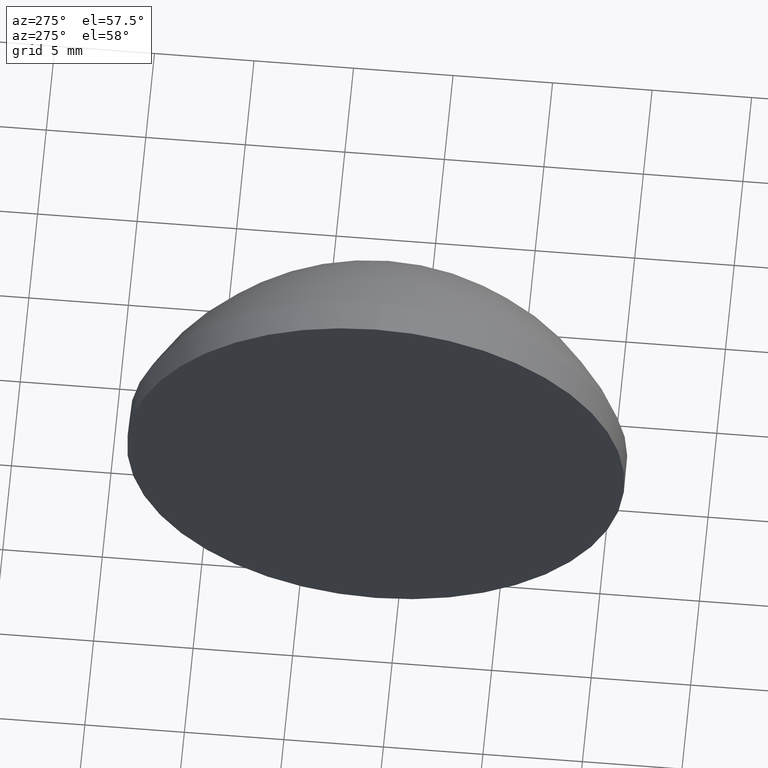
[diagram: clean part render]
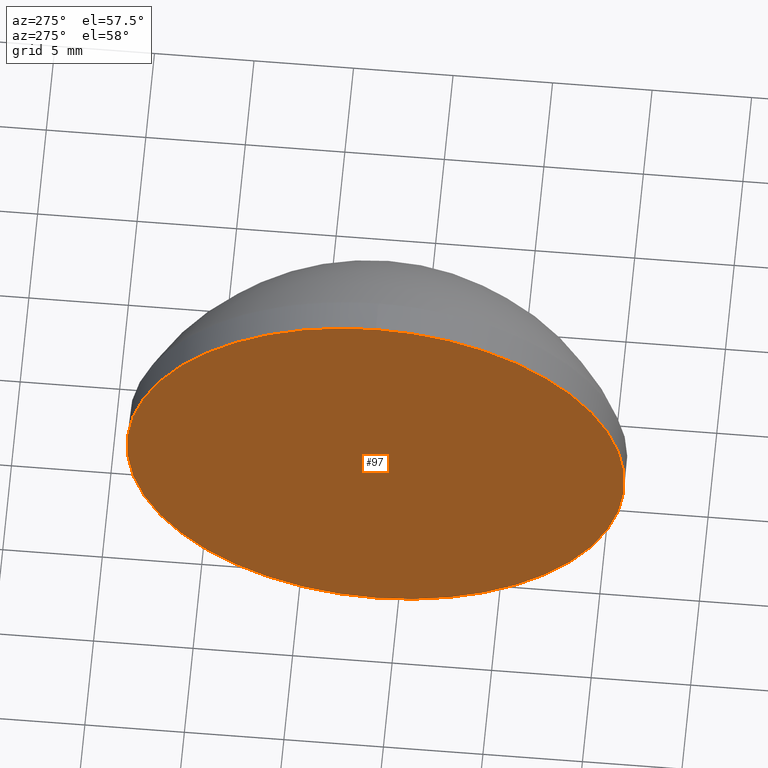
[diagram: same view with one face highlighted and labeled with its STEP entity id]
A machine part, auxiliary view. The second image highlights one B-rep face of the part: STEP entity #97.
In plain terms, the highlighted planar face has unit normal (1, 0, 0).
Its self-contained STEP definition (entity closure, byte-faithful):
#10 = VERTEX_POINT ( 'NONE', #122 ) ;
#14 = EDGE_CURVE ( 'NONE', #10, #175, #37, .T. ) ;
#17 = DIRECTION ( 'NONE',  ( 0.0000000000000000000, 0.0000000000000000000, 1.000000000000000000 ) ) ;
#18 = DIRECTION ( 'NONE',  ( 1.000000000000000000, 0.0000000000000000000, 0.0000000000000000000 ) ) ;
#33 = EDGE_LOOP ( 'NONE', ( #81, #89 ) ) ;
#34 = CARTESIAN_POINT ( 'NONE',  ( 443.4287641155197000, -33.87662092568371000, 0.0000000000000000000 ) ) ;
#37 = CIRCLE ( 'NONE', #47, 12.50000000000000400 ) ;
#46 = DIRECTION ( 'NONE',  ( -1.000000000000000000, -0.0000000000000000000, -0.0000000000000000000 ) ) ;
#47 = AXIS2_PLACEMENT_3D ( 'NONE', #133, #46, #147 ) ;
#70 = CIRCLE ( 'NONE', #178, 12.50000000000000400 ) ;
#80 = DIRECTION ( 'NONE',  ( 0.0000000000000000000, 0.0000000000000000000, -1.000000000000000000 ) ) ;
#81 = ORIENTED_EDGE ( 'NONE', *, *, #14, .T. ) ;
#87 = CARTESIAN_POINT ( 'NONE',  ( 443.4287641155197000, -33.87662092568371000, -12.50000000000000400 ) ) ;
#89 = ORIENTED_EDGE ( 'NONE', *, *, #127, .T. ) ;
#93 = DIRECTION ( 'NONE',  ( -1.000000000000000000, -0.0000000000000000000, -0.0000000000000000000 ) ) ;
#97 = ADVANCED_FACE ( 'NONE', ( #120 ), #176, .F. ) ;
#108 = CARTESIAN_POINT ( 'NONE',  ( 443.4287641155197000, -33.87662092568371000, 0.0000000000000000000 ) ) ;
#120 = FACE_OUTER_BOUND ( 'NONE', #33, .T. ) ;
#122 = CARTESIAN_POINT ( 'NONE',  ( 443.4287641155197000, -33.87662092568371000, 12.50000000000000400 ) ) ;
#127 = EDGE_CURVE ( 'NONE', #175, #10, #70, .T. ) ;
#133 = CARTESIAN_POINT ( 'NONE',  ( 443.4287641155197000, -33.87662092568371000, 0.0000000000000000000 ) ) ;
#140 = AXIS2_PLACEMENT_3D ( 'NONE', #34, #18, #80 ) ;
#147 = DIRECTION ( 'NONE',  ( 0.0000000000000000000, 0.0000000000000000000, 1.000000000000000000 ) ) ;
#175 = VERTEX_POINT ( 'NONE', #87 ) ;
#176 = PLANE ( 'NONE',  #140 ) ;
#178 = AXIS2_PLACEMENT_3D ( 'NONE', #108, #93, #17 ) ;